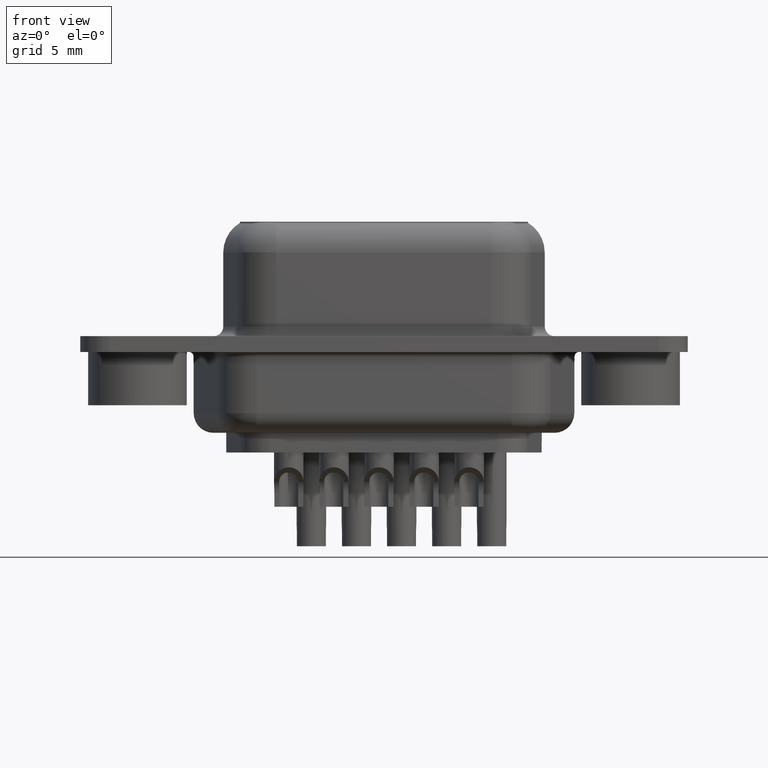
[diagram: clean part render]
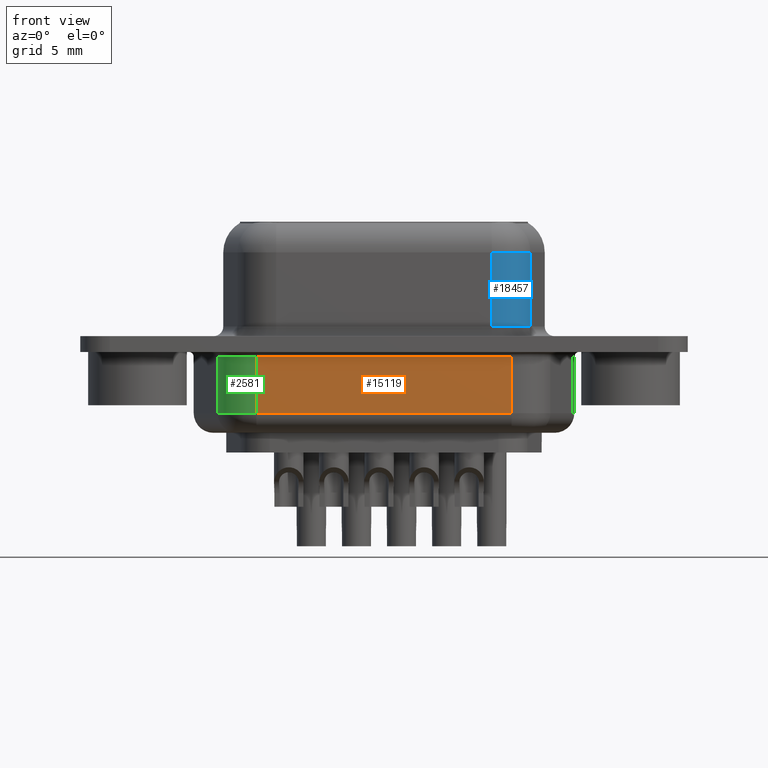
[diagram: same view with three faces highlighted in distinct colors, each labeled with its STEP entity id]
A machine part, front view with three faces highlighted in distinct colors.
Their STEP definitions:

[orange] entity #15119 — the highlighted planar face has unit normal (0, 1, 0).
#1434 = CARTESIAN_POINT ( 'NONE',  ( 18.96860922925333526, -5.350000000000002309, -3.499999999999999556 ) ) ;
#1804 = DIRECTION ( 'NONE',  ( -0.0000000000000000000, -0.0000000000000000000, 1.000000000000000000 ) ) ;
#2329 = AXIS2_PLACEMENT_3D ( 'NONE', #12953, #16065, #3825 ) ;
#2821 = ORIENTED_EDGE ( 'NONE', *, *, #13665, .T. ) ;
#3825 = DIRECTION ( 'NONE',  ( 0.0000000000000000000, -0.0000000000000000000, 1.000000000000000000 ) ) ;
#4805 = CARTESIAN_POINT ( 'NONE',  ( 6.031390770746678953, -5.350000000000002309, -4.500000000000000000 ) ) ;
#5101 = CARTESIAN_POINT ( 'NONE',  ( 6.031390770746678953, -5.350000000000002309, -0.6500000000000000222 ) ) ;
#5665 = PLANE ( 'NONE',  #2329 ) ;
#6110 = ORIENTED_EDGE ( 'NONE', *, *, #7993, .T. ) ;
#6175 = LINE ( 'NONE', #7663, #17176 ) ;
#6284 = DIRECTION ( 'NONE',  ( 1.000000000000000000, -0.0000000000000000000, -0.0000000000000000000 ) ) ;
#6568 = VECTOR ( 'NONE', #6284, 1000.000000000000000 ) ;
#6653 = EDGE_CURVE ( 'NONE', #14154, #15520, #12180, .T. ) ;
#6912 = DIRECTION ( 'NONE',  ( -0.0000000000000000000, -0.0000000000000000000, 1.000000000000000000 ) ) ;
#6952 = ORIENTED_EDGE ( 'NONE', *, *, #13573, .F. ) ;
#7663 = CARTESIAN_POINT ( 'NONE',  ( 18.96860922925333526, -5.350000000000002309, -4.500000000000000000 ) ) ;
#7744 = LINE ( 'NONE', #4805, #14771 ) ;
#7993 = EDGE_CURVE ( 'NONE', #15520, #13613, #6175, .T. ) ;
#8086 = CARTESIAN_POINT ( 'NONE',  ( 6.031390770746678953, -5.350000000000002309, -3.499999999999999556 ) ) ;
#8397 = CARTESIAN_POINT ( 'NONE',  ( 18.96860922925333526, -5.350000000000002309, -0.6500000000000000222 ) ) ;
#9118 = VECTOR ( 'NONE', #15390, 1000.000000000000000 ) ;
#10879 = LINE ( 'NONE', #5101, #9118 ) ;
#12180 = LINE ( 'NONE', #13670, #6568 ) ;
#12953 = CARTESIAN_POINT ( 'NONE',  ( 6.031390770746678953, -5.350000000000002309, -4.500000000000000000 ) ) ;
#13573 = EDGE_CURVE ( 'NONE', #14154, #17839, #7744, .T. ) ;
#13613 = VERTEX_POINT ( 'NONE', #8397 ) ;
#13665 = EDGE_CURVE ( 'NONE', #13613, #17839, #10879, .T. ) ;
#13670 = CARTESIAN_POINT ( 'NONE',  ( 6.031390770746678953, -5.350000000000002309, -3.499999999999999556 ) ) ;
#14154 = VERTEX_POINT ( 'NONE', #8086 ) ;
#14771 = VECTOR ( 'NONE', #6912, 1000.000000000000000 ) ;
#15119 = ADVANCED_FACE ( 'NONE', ( #18915 ), #5665, .F. ) ;
#15173 = EDGE_LOOP ( 'NONE', ( #6952, #19036, #6110, #2821 ) ) ;
#15390 = DIRECTION ( 'NONE',  ( -1.000000000000000000, 0.0000000000000000000, 0.0000000000000000000 ) ) ;
#15520 = VERTEX_POINT ( 'NONE', #1434 ) ;
#16065 = DIRECTION ( 'NONE',  ( -0.0000000000000000000, 1.000000000000000000, 0.0000000000000000000 ) ) ;
#17176 = VECTOR ( 'NONE', #1804, 1000.000000000000000 ) ;
#17839 = VERTEX_POINT ( 'NONE', #18679 ) ;
#18679 = CARTESIAN_POINT ( 'NONE',  ( 6.031390770746678953, -5.350000000000002309, -0.6500000000000000222 ) ) ;
#18915 = FACE_OUTER_BOUND ( 'NONE', #15173, .T. ) ;
#19036 = ORIENTED_EDGE ( 'NONE', *, *, #6653, .T. ) ;

[blue] entity #18457 — the highlighted cylindrical surface (partial cylindrical patch) has radius 2 mm, axis along (-0, -0, -1).
#171 = CARTESIAN_POINT ( 'NONE',  ( 17.96232477523702542, -1.950000000000002176, 4.650000000000000355 ) ) ;
#1231 = VERTEX_POINT ( 'NONE', #5844 ) ;
#1340 = DIRECTION ( 'NONE',  ( -0.0000000000000000000, -0.0000000000000000000, -1.000000000000000000 ) ) ;
#1809 = AXIS2_PLACEMENT_3D ( 'NONE', #14748, #1340, #13096 ) ;
#2106 = VERTEX_POINT ( 'NONE', #18465 ) ;
#2179 = AXIS2_PLACEMENT_3D ( 'NONE', #8618, #2670, #13053 ) ;
#2190 = EDGE_CURVE ( 'NONE', #2106, #1231, #10592, .T. ) ;
#2557 = CIRCLE ( 'NONE', #9415, 1.999999999999998224 ) ;
#2670 = DIRECTION ( 'NONE',  ( 0.0000000000000000000, 0.0000000000000000000, 1.000000000000000000 ) ) ;
#3498 = VECTOR ( 'NONE', #5970, 1000.000000000000000 ) ;
#3517 = VERTEX_POINT ( 'NONE', #15889 ) ;
#4536 = VERTEX_POINT ( 'NONE', #16131 ) ;
#4628 = CARTESIAN_POINT ( 'NONE',  ( 19.93194028126144346, -2.297296355333849238, 6.400000000000000355 ) ) ;
#4972 = CIRCLE ( 'NONE', #2179, 1.999999999999998224 ) ;
#5844 = CARTESIAN_POINT ( 'NONE',  ( 17.96232477523702542, -3.950000000000001066, 0.8999999999999998002 ) ) ;
#5970 = DIRECTION ( 'NONE',  ( -0.0000000000000000000, -0.0000000000000000000, -1.000000000000000000 ) ) ;
#6072 = CARTESIAN_POINT ( 'NONE',  ( 17.96232477523702542, -3.950000000000001066, 6.400000000000000355 ) ) ;
#6885 = EDGE_CURVE ( 'NONE', #1231, #3517, #4972, .T. ) ;
#7269 = VECTOR ( 'NONE', #12075, 1000.000000000000000 ) ;
#7689 = DIRECTION ( 'NONE',  ( -1.000000000000000000, 0.0000000000000000000, 0.0000000000000000000 ) ) ;
#7767 = LINE ( 'NONE', #4628, #7269 ) ;
#8618 = CARTESIAN_POINT ( 'NONE',  ( 17.96232477523702542, -1.950000000000002176, 0.8999999999999998002 ) ) ;
#9415 = AXIS2_PLACEMENT_3D ( 'NONE', #171, #15233, #7689 ) ;
#10426 = ORIENTED_EDGE ( 'NONE', *, *, #2190, .T. ) ;
#10442 = EDGE_LOOP ( 'NONE', ( #12117, #17514, #10426, #17353 ) ) ;
#10592 = LINE ( 'NONE', #6072, #3498 ) ;
#11354 = EDGE_CURVE ( 'NONE', #4536, #2106, #2557, .T. ) ;
#12075 = DIRECTION ( 'NONE',  ( -0.0000000000000000000, -0.0000000000000000000, -1.000000000000000000 ) ) ;
#12117 = ORIENTED_EDGE ( 'NONE', *, *, #13068, .F. ) ;
#13053 = DIRECTION ( 'NONE',  ( 1.000000000000000000, 0.0000000000000000000, 0.0000000000000000000 ) ) ;
#13068 = EDGE_CURVE ( 'NONE', #4536, #3517, #7767, .T. ) ;
#13096 = DIRECTION ( 'NONE',  ( -1.000000000000000000, 0.0000000000000000000, 0.0000000000000000000 ) ) ;
#13473 = FACE_OUTER_BOUND ( 'NONE', #10442, .T. ) ;
#14748 = CARTESIAN_POINT ( 'NONE',  ( 17.96232477523702542, -1.950000000000002176, 6.400000000000000355 ) ) ;
#15233 = DIRECTION ( 'NONE',  ( -0.0000000000000000000, -0.0000000000000000000, -1.000000000000000000 ) ) ;
#15889 = CARTESIAN_POINT ( 'NONE',  ( 19.93194028126144346, -2.297296355333849238, 0.8999999999999998002 ) ) ;
#16131 = CARTESIAN_POINT ( 'NONE',  ( 19.93194028126144346, -2.297296355333849238, 4.650000000000000355 ) ) ;
#16304 = CYLINDRICAL_SURFACE ( 'NONE', #1809, 1.999999999999998224 ) ;
#17353 = ORIENTED_EDGE ( 'NONE', *, *, #6885, .T. ) ;
#17514 = ORIENTED_EDGE ( 'NONE', *, *, #11354, .T. ) ;
#18457 = ADVANCED_FACE ( 'NONE', ( #13473 ), #16304, .T. ) ;
#18465 = CARTESIAN_POINT ( 'NONE',  ( 17.96232477523702542, -3.950000000000001066, 4.650000000000000355 ) ) ;

[green] entity #2581 — the highlighted cylindrical surface (partial cylindrical patch) has radius 2 mm, axis along (0, 0, 1).
#379 = AXIS2_PLACEMENT_3D ( 'NONE', #14506, #8418, #6746 ) ;
#781 = VERTEX_POINT ( 'NONE', #4279 ) ;
#876 = DIRECTION ( 'NONE',  ( 0.0000000000000000000, -0.0000000000000000000, 1.000000000000000000 ) ) ;
#2331 = CARTESIAN_POINT ( 'NONE',  ( 4.061775264722261802, -3.697296355333849593, -0.6500000000000000222 ) ) ;
#2554 = FACE_OUTER_BOUND ( 'NONE', #12817, .T. ) ;
#2581 = ADVANCED_FACE ( 'NONE', ( #2554 ), #15862, .T. ) ;
#3098 = ORIENTED_EDGE ( 'NONE', *, *, #16058, .T. ) ;
#3622 = DIRECTION ( 'NONE',  ( -0.0000000000000000000, -0.0000000000000000000, -1.000000000000000000 ) ) ;
#3910 = AXIS2_PLACEMENT_3D ( 'NONE', #14400, #3622, #5089 ) ;
#3938 = ORIENTED_EDGE ( 'NONE', *, *, #11752, .F. ) ;
#4279 = CARTESIAN_POINT ( 'NONE',  ( 4.061775264722261802, -3.697296355333849593, -3.499999999999999556 ) ) ;
#4805 = CARTESIAN_POINT ( 'NONE',  ( 6.031390770746678953, -5.350000000000002309, -4.500000000000000000 ) ) ;
#5070 = CARTESIAN_POINT ( 'NONE',  ( 6.031390770746678953, -3.350000000000002309, -3.499999999999999556 ) ) ;
#5089 = DIRECTION ( 'NONE',  ( -1.000000000000000000, 0.0000000000000000000, 0.0000000000000000000 ) ) ;
#6359 = LINE ( 'NONE', #9106, #14116 ) ;
#6746 = DIRECTION ( 'NONE',  ( 1.000000000000000000, 0.0000000000000000000, 0.0000000000000000000 ) ) ;
#6912 = DIRECTION ( 'NONE',  ( -0.0000000000000000000, -0.0000000000000000000, 1.000000000000000000 ) ) ;
#7633 = ORIENTED_EDGE ( 'NONE', *, *, #12409, .T. ) ;
#7644 = DIRECTION ( 'NONE',  ( -0.0000000000000000000, -0.0000000000000000000, 1.000000000000000000 ) ) ;
#7744 = LINE ( 'NONE', #4805, #14771 ) ;
#8086 = CARTESIAN_POINT ( 'NONE',  ( 6.031390770746678953, -5.350000000000002309, -3.499999999999999556 ) ) ;
#8418 = DIRECTION ( 'NONE',  ( -0.0000000000000000000, -0.0000000000000000000, 1.000000000000000000 ) ) ;
#9106 = CARTESIAN_POINT ( 'NONE',  ( 4.061775264722261802, -3.697296355333849593, -4.500000000000000000 ) ) ;
#11752 = EDGE_CURVE ( 'NONE', #781, #18285, #6359, .T. ) ;
#12409 = EDGE_CURVE ( 'NONE', #781, #14154, #16000, .T. ) ;
#12817 = EDGE_LOOP ( 'NONE', ( #3938, #7633, #14411, #3098 ) ) ;
#13573 = EDGE_CURVE ( 'NONE', #14154, #17839, #7744, .T. ) ;
#14116 = VECTOR ( 'NONE', #7644, 1000.000000000000000 ) ;
#14154 = VERTEX_POINT ( 'NONE', #8086 ) ;
#14400 = CARTESIAN_POINT ( 'NONE',  ( 6.031390770746678953, -3.350000000000002309, -0.6500000000000000222 ) ) ;
#14411 = ORIENTED_EDGE ( 'NONE', *, *, #13573, .T. ) ;
#14506 = CARTESIAN_POINT ( 'NONE',  ( 6.031390770746678953, -3.350000000000002309, -4.500000000000000000 ) ) ;
#14771 = VECTOR ( 'NONE', #6912, 1000.000000000000000 ) ;
#15074 = AXIS2_PLACEMENT_3D ( 'NONE', #5070, #876, #18687 ) ;
#15862 = CYLINDRICAL_SURFACE ( 'NONE', #379, 2.000000000000000000 ) ;
#16000 = CIRCLE ( 'NONE', #15074, 2.000000000000000000 ) ;
#16058 = EDGE_CURVE ( 'NONE', #17839, #18285, #18935, .T. ) ;
#17839 = VERTEX_POINT ( 'NONE', #18679 ) ;
#18285 = VERTEX_POINT ( 'NONE', #2331 ) ;
#18679 = CARTESIAN_POINT ( 'NONE',  ( 6.031390770746678953, -5.350000000000002309, -0.6500000000000000222 ) ) ;
#18687 = DIRECTION ( 'NONE',  ( 1.000000000000000000, 0.0000000000000000000, 0.0000000000000000000 ) ) ;
#18935 = CIRCLE ( 'NONE', #3910, 2.000000000000000000 ) ;